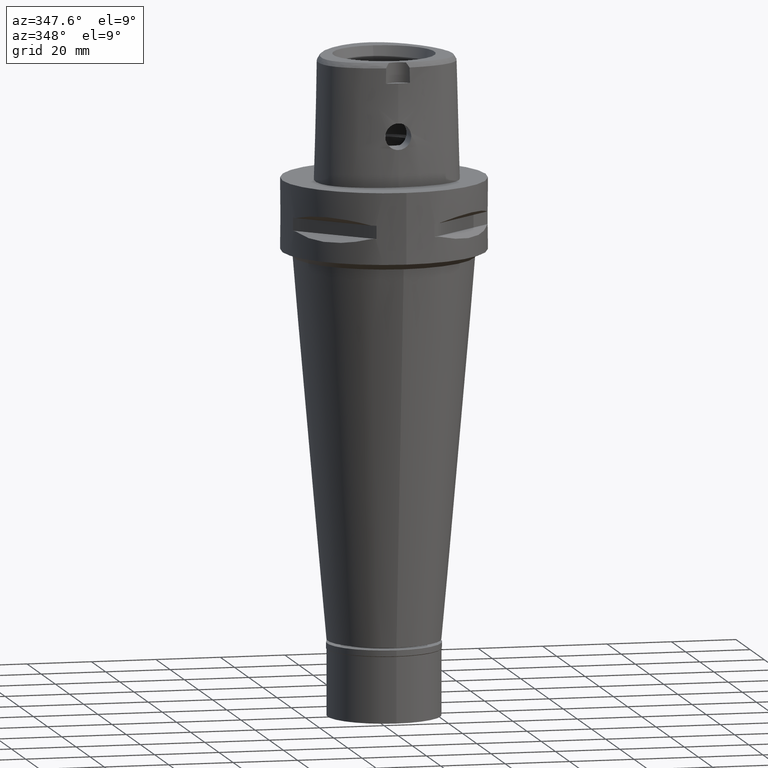
[diagram: clean part render]
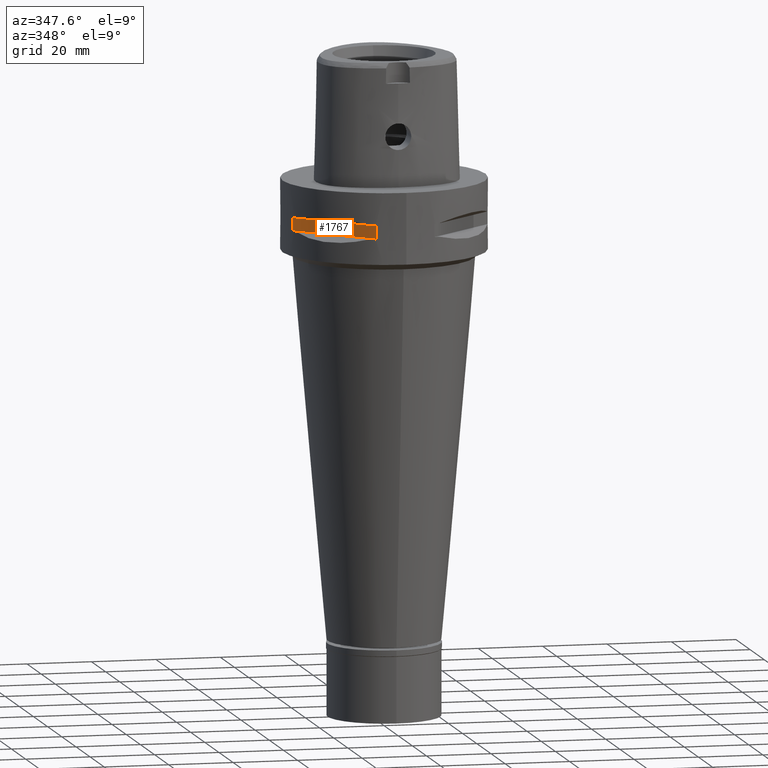
[diagram: same view with one face highlighted and labeled with its STEP entity id]
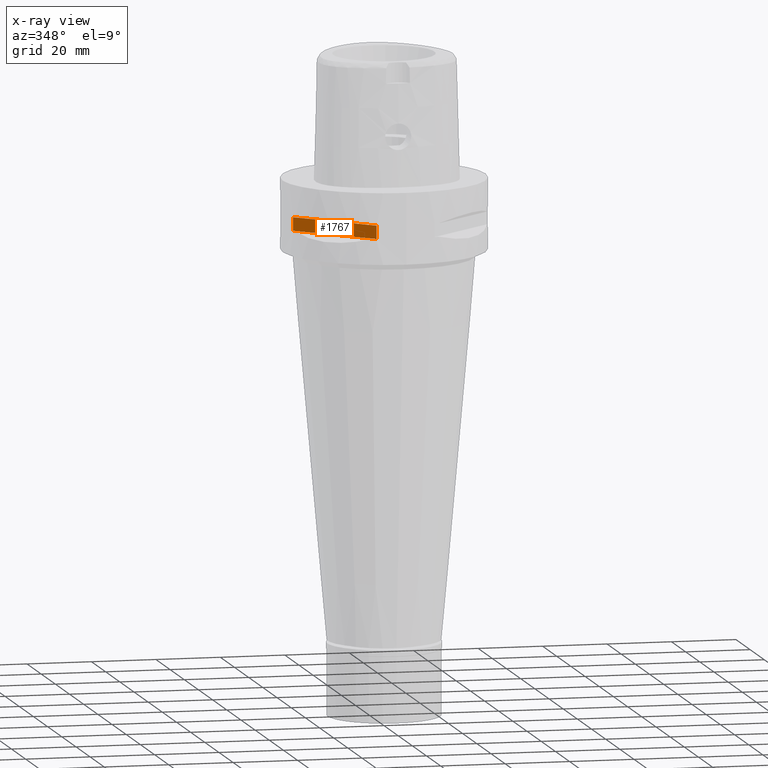
[diagram: x-ray of the same camera — body ghosted, the highlighted face saturated]
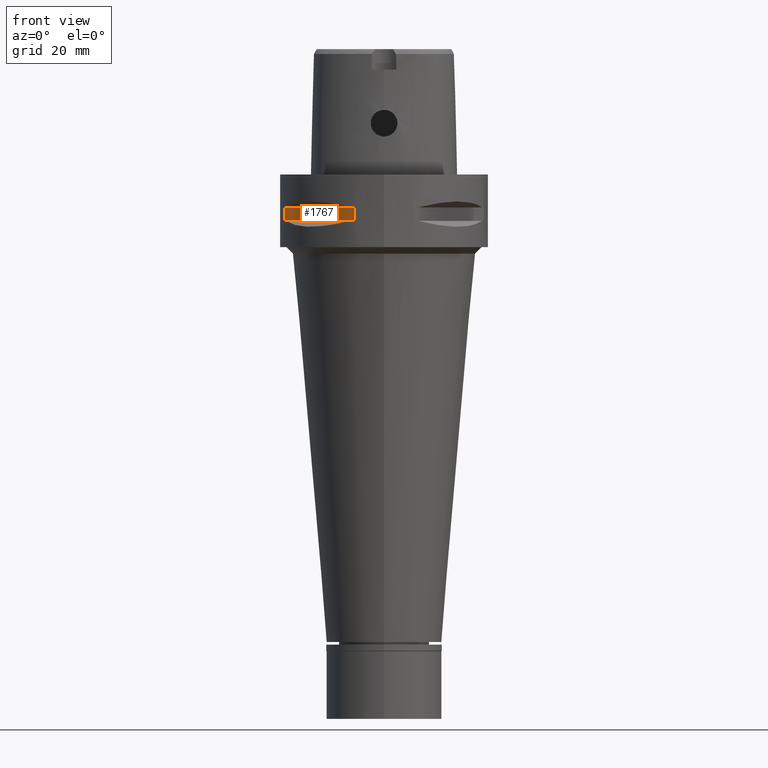
[diagram: same view with one face highlighted and labeled with its STEP entity id]
A machine part, auxiliary view. The second image highlights one B-rep face of the part: STEP entity #1767.
The next image is the same camera in x-ray: the body ghosted, the highlighted face saturated — about 0% of this face is hidden behind the body in this view.
A second angle (front view) of the same face is appended — the face is thin or edge-on in the first view.
In plain terms, the highlighted planar face has unit normal (0.7071, 0.7071, 0).
Its self-contained STEP definition (entity closure, byte-faithful):
#265 = CARTESIAN_POINT ( 'NONE',  ( -30.19251670572000279, -8.981198972017999438, -14.05000000000000071 ) ) ;
#319 = CARTESIAN_POINT ( 'NONE',  ( -30.19251670572000279, -8.981198972017999438, -9.950000000000001066 ) ) ;
#507 = ORIENTED_EDGE ( 'NONE', *, *, #1215, .T. ) ;
#627 = DIRECTION ( 'NONE',  ( 0.7071067811865474617, -0.7071067811865474617, 0.0000000000000000000 ) ) ;
#1061 = CARTESIAN_POINT ( 'NONE',  ( -30.19251670572000279, -8.981198972017999438, -9.950000000000001066 ) ) ;
#1088 = EDGE_LOOP ( 'NONE', ( #1766, #4717, #507, #4168 ) ) ;
#1151 = VECTOR ( 'NONE', #627, 1000.000000000000114 ) ;
#1215 = EDGE_CURVE ( 'NONE', #3679, #3485, #2580, .T. ) ;
#1354 = DIRECTION ( 'NONE',  ( 0.0000000000000000000, 0.0000000000000000000, -1.000000000000000000 ) ) ;
#1473 = AXIS2_PLACEMENT_3D ( 'NONE', #4778, #4074, #1354 ) ;
#1484 = CARTESIAN_POINT ( 'NONE',  ( -30.19251670572000279, -8.981198972019999616, -9.950000000000001066 ) ) ;
#1531 = EDGE_CURVE ( 'NONE', #1618, #3679, #4213, .T. ) ;
#1603 = CARTESIAN_POINT ( 'NONE',  ( -30.19251670572000279, -8.981198972017999438, -14.05000000000000071 ) ) ;
#1618 = VERTEX_POINT ( 'NONE', #1484 ) ;
#1682 = FACE_OUTER_BOUND ( 'NONE', #1088, .T. ) ;
#1766 = ORIENTED_EDGE ( 'NONE', *, *, #3286, .F. ) ;
#1767 = ADVANCED_FACE ( 'NONE', ( #1682 ), #3228, .F. ) ;
#1894 = DIRECTION ( 'NONE',  ( 0.7071067811865474617, -0.7071067811865474617, 0.0000000000000000000 ) ) ;
#2490 = DIRECTION ( 'NONE',  ( 0.0000000000000000000, 0.0000000000000000000, 1.000000000000000000 ) ) ;
#2580 = LINE ( 'NONE', #265, #1151 ) ;
#2839 = CARTESIAN_POINT ( 'NONE',  ( -8.981198972017999438, -30.19251670572000279, -14.05000000000000071 ) ) ;
#3039 = VECTOR ( 'NONE', #1894, 1000.000000000000114 ) ;
#3228 = PLANE ( 'NONE',  #1473 ) ;
#3286 = EDGE_CURVE ( 'NONE', #1618, #4158, #3415, .T. ) ;
#3387 = EDGE_CURVE ( 'NONE', #3485, #4158, #4020, .T. ) ;
#3415 = LINE ( 'NONE', #319, #3039 ) ;
#3485 = VERTEX_POINT ( 'NONE', #4525 ) ;
#3679 = VERTEX_POINT ( 'NONE', #1603 ) ;
#4020 = LINE ( 'NONE', #2839, #4357 ) ;
#4074 = DIRECTION ( 'NONE',  ( 0.7071067811865475727, 0.7071067811865475727, 0.0000000000000000000 ) ) ;
#4158 = VERTEX_POINT ( 'NONE', #4242 ) ;
#4168 = ORIENTED_EDGE ( 'NONE', *, *, #3387, .T. ) ;
#4186 = DIRECTION ( 'NONE',  ( 0.0000000000000000000, 0.0000000000000000000, -1.000000000000000000 ) ) ;
#4213 = LINE ( 'NONE', #1061, #4580 ) ;
#4242 = CARTESIAN_POINT ( 'NONE',  ( -8.981198972017999438, -30.19251670572000279, -9.950000000000001066 ) ) ;
#4357 = VECTOR ( 'NONE', #2490, 1000.000000000000000 ) ;
#4525 = CARTESIAN_POINT ( 'NONE',  ( -8.981198972019999616, -30.19251670572000279, -14.05000000000000071 ) ) ;
#4580 = VECTOR ( 'NONE', #4186, 1000.000000000000000 ) ;
#4717 = ORIENTED_EDGE ( 'NONE', *, *, #1531, .T. ) ;
#4778 = CARTESIAN_POINT ( 'NONE',  ( -5.444722215136000187, -33.72899346260000186, -9.950000000000001066 ) ) ;